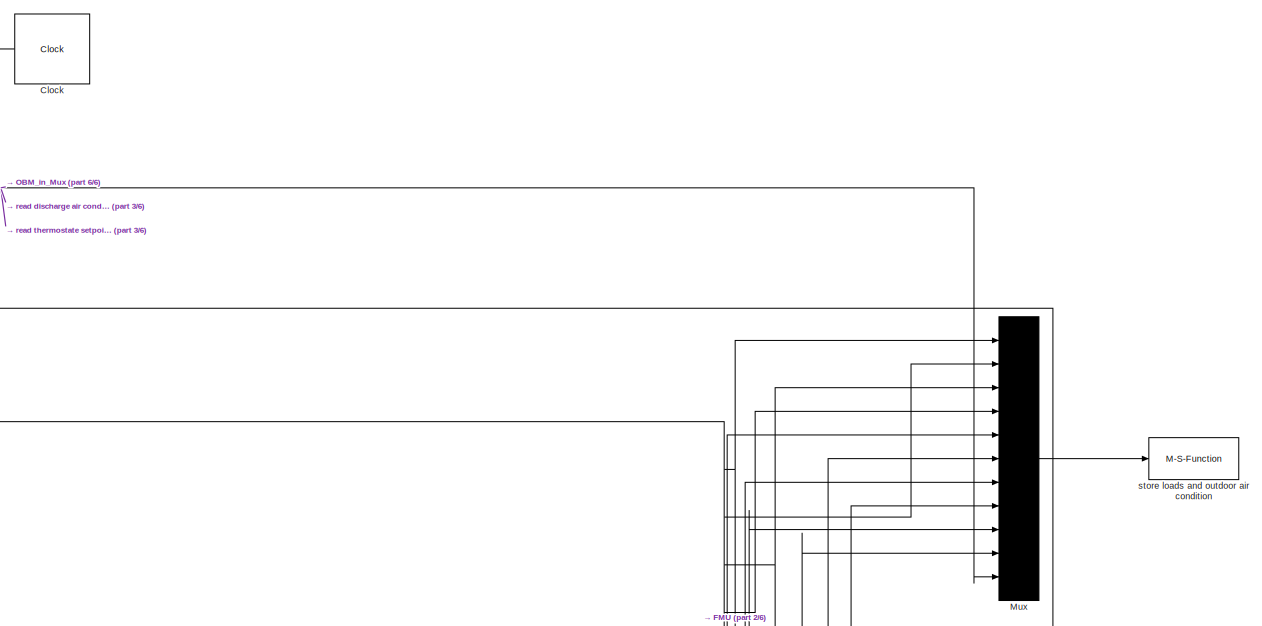
[diagram: root canvas - part 1/6, top right region]
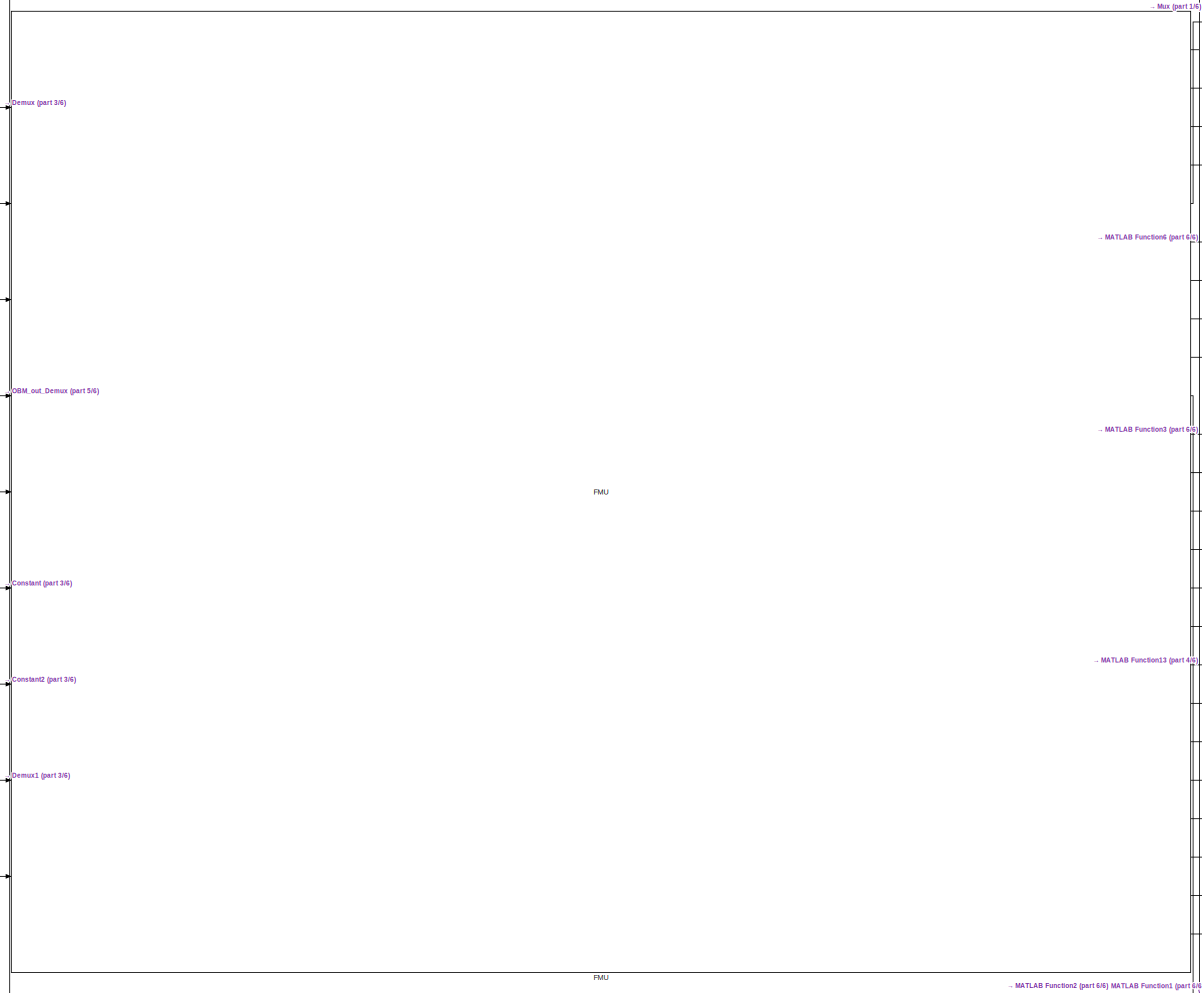
[diagram: root canvas - part 2/6, central region]
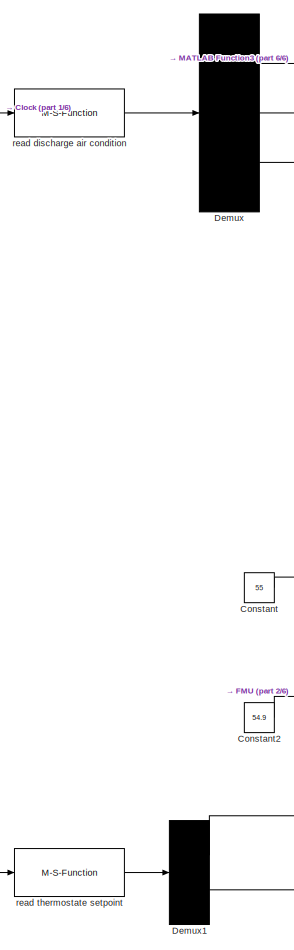
[diagram: root canvas - part 3/6, middle left region]
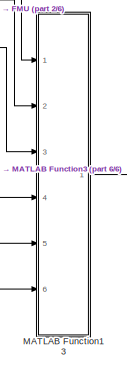
[diagram: root canvas - part 4/6, middle right region]
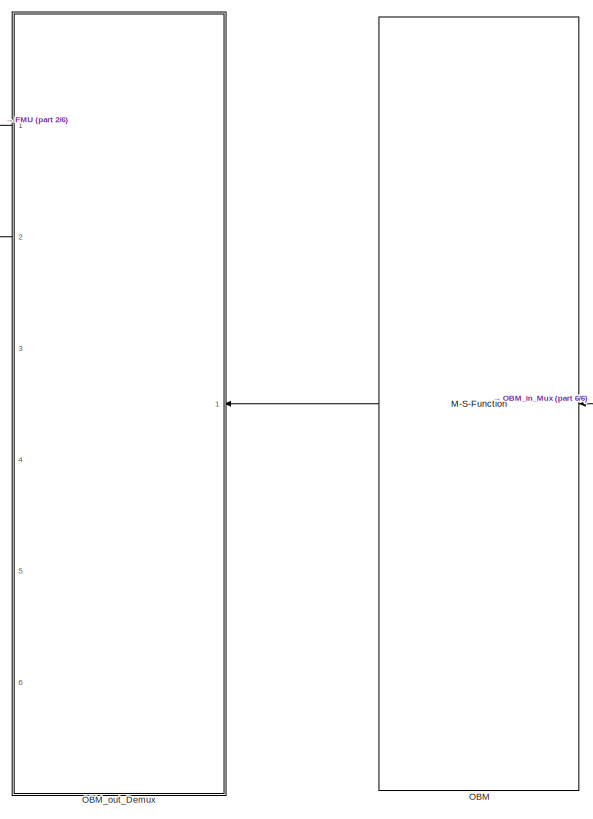
[diagram: root canvas - part 5/6, bottom center region]
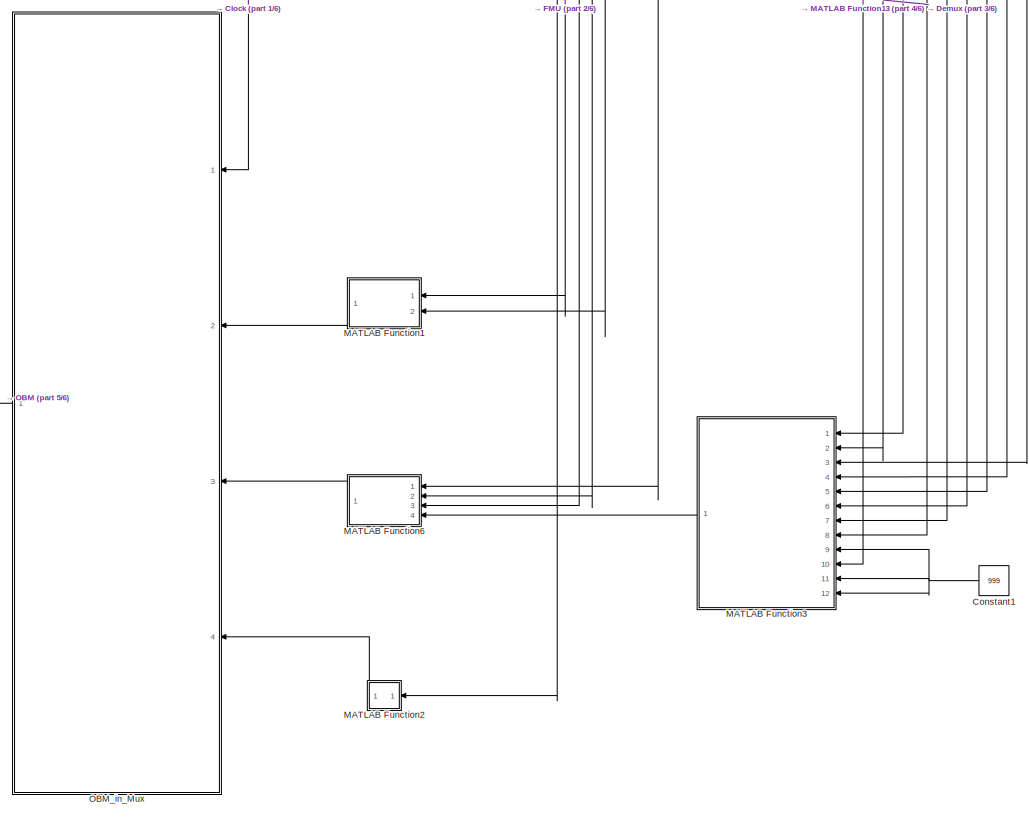
[diagram: root canvas - part 6/6, bottom right region]
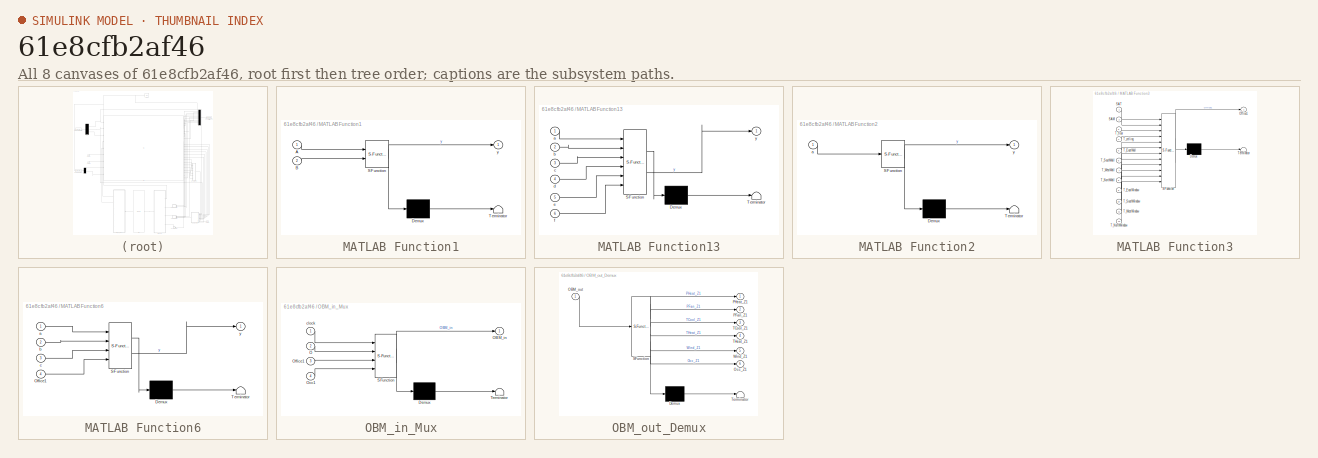
[diagram: thumbnail index - all 8 canvases of the model, root first then tree order]
MODEL slx_61e8cfb2af46
KIND model
CONFIG AbsTol = auto
CONFIG EnableMultiTasking = off
CONFIG FixedStep = 60
CONFIG MaxStep = auto
CONFIG MinStep = auto
CONFIG RelTol = 1e-3
CONFIG SampleTimeConstraint = Unconstrained
CONFIG Solver = FixedStepAuto
CONFIG SolverName = FixedStepAuto
CONFIG StartTime = 20390400
CONFIG StopTime = 20563200
BLOCK [Clock] Clock
  DisplayTime = on
BLOCK [Constant] Constant
  Value = 55
BLOCK [Constant] Constant1
  Value = 999
BLOCK [Constant] Constant2
  Value = 54.9
BLOCK [Demux] Demux
  Outputs = 3
  Ports = [1, 3]
BLOCK [Demux] Demux1
  Outputs = 2
  Ports = [1, 2]
BLOCK [FMU] FMU
  FMUMode = CoSimulation
  FMUName = ASHRAE901_OfficeSmall_STD2019_Tucson_2019Year.fmu
  MaskDisplay = disp('ASHRAE901_OfficeSmall_STD2019_Tucson_2019Year.idf');\nport_label('output',1,'T_out');\nport_label('output',2,'DewpointT_out');\nport_label('output',3,'RH_out');\nport_label('output',4,'Perimeter_ZN_1_SenLoads');\nport_label('output',5,'Perimeter_ZN_1_LatLoads');\nport_label('output',6,'Perimeter_ZN_1_Temp');\nport_label('output',7,'Perimeter_ZN_1_RadTemp');\nport_label('output',8,'Perimeter_ZN_1_Dew...<+1294ch>
  MaskType = ASHRAE901_OfficeSmall_STD2019_Tucson_2019Year.idf [Co-Simulation, v2.0]
  Ports = [9, 24]
BLOCK [SubSystem] MATLAB Function1
  ErrorFcn = Stateflow.Translate.translate
  PermitHierarchicalResolution = ExplicitOnly
  Ports = [2, 1]
  RequestExecContextInheritance = off
  SFBlockType = MATLAB Function
  TreatAsAtomicUnit = on
BLOCK [Demux] MATLAB Function1/ Demux 
  Outputs = 1
  Ports = [1, 1]
BLOCK [S-Function] MATLAB Function1/ SFunction 
  EnableBusSupport = on
  FunctionName = sf_sfun
  PortCounts = [2 2]
  Ports = [2, 2]
  SFcnIsStateOwnerBlock = off
  SFunctionDeploymentMode = off
  Tag = Stateflow S-Function 1
BLOCK [Terminator] MATLAB Function1/ Terminator 
BLOCK [Inport] MATLAB Function1/A
BLOCK [Inport] MATLAB Function1/B
  Port = 2
BLOCK [Outport] MATLAB Function1/y
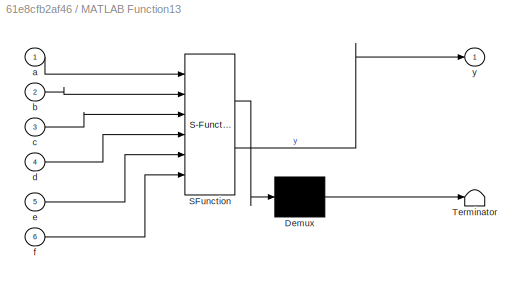
BLOCK [SubSystem] MATLAB Function13
  ErrorFcn = Stateflow.Translate.translate
  PermitHierarchicalResolution = ExplicitOnly
  Ports = [6, 1]
  RequestExecContextInheritance = off
  SFBlockType = MATLAB Function
  TreatAsAtomicUnit = on
BLOCK [Demux] MATLAB Function13/ Demux 
  Outputs = 1
  Ports = [1, 1]
BLOCK [S-Function] MATLAB Function13/ SFunction 
  EnableBusSupport = on
  FunctionName = sf_sfun
  PortCounts = [6 2]
  Ports = [6, 2]
  SFcnIsStateOwnerBlock = off
  SFunctionDeploymentMode = off
  Tag = Stateflow S-Function 14
BLOCK [Terminator] MATLAB Function13/ Terminator 
BLOCK [Inport] MATLAB Function13/a
BLOCK [Inport] MATLAB Function13/b
  Port = 2
BLOCK [Inport] MATLAB Function13/c
  Port = 3
BLOCK [Inport] MATLAB Function13/d
  Port = 4
BLOCK [Inport] MATLAB Function13/e
  Port = 5
BLOCK [Inport] MATLAB Function13/f
  Port = 6
BLOCK [Outport] MATLAB Function13/y
BLOCK [SubSystem] MATLAB Function2
  ErrorFcn = Stateflow.Translate.translate
  PermitHierarchicalResolution = ExplicitOnly
  Ports = [1, 1]
  RequestExecContextInheritance = off
  SFBlockType = MATLAB Function
  TreatAsAtomicUnit = on
BLOCK [Demux] MATLAB Function2/ Demux 
  Outputs = 1
  Ports = [1, 1]
BLOCK [S-Function] MATLAB Function2/ SFunction 
  EnableBusSupport = on
  FunctionName = sf_sfun
  PortCounts = [1 2]
  Ports = [1, 2]
  SFcnIsStateOwnerBlock = off
  SFunctionDeploymentMode = off
  Tag = Stateflow S-Function 3
BLOCK [Terminator] MATLAB Function2/ Terminator 
BLOCK [Inport] MATLAB Function2/a
BLOCK [Outport] MATLAB Function2/y
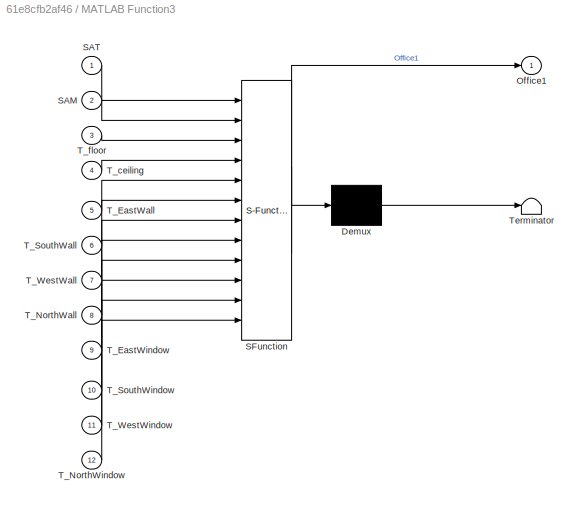
BLOCK [SubSystem] MATLAB Function3
  ErrorFcn = Stateflow.Translate.translate
  PermitHierarchicalResolution = ExplicitOnly
  Ports = [12, 1]
  RequestExecContextInheritance = off
  SFBlockType = MATLAB Function
  TreatAsAtomicUnit = on
BLOCK [Demux] MATLAB Function3/ Demux 
  Outputs = 1
  Ports = [1, 1]
BLOCK [S-Function] MATLAB Function3/ SFunction 
  EnableBusSupport = on
  FunctionName = sf_sfun
  PortCounts = [12 2]
  Ports = [12, 2]
  SFcnIsStateOwnerBlock = off
  SFunctionDeploymentMode = off
  Tag = Stateflow S-Function 4
BLOCK [Terminator] MATLAB Function3/ Terminator 
BLOCK [Outport] MATLAB Function3/Office1
BLOCK [Inport] MATLAB Function3/SAM
  Port = 2
BLOCK [Inport] MATLAB Function3/SAT
BLOCK [Inport] MATLAB Function3/T_EastWall
  Port = 5
BLOCK [Inport] MATLAB Function3/T_EastWindow
  Port = 9
BLOCK [Inport] MATLAB Function3/T_NorthWall
  Port = 8
BLOCK [Inport] MATLAB Function3/T_NorthWindow
  Port = 12
BLOCK [Inport] MATLAB Function3/T_SouthWall
  Port = 6
BLOCK [Inport] MATLAB Function3/T_SouthWindow
  Port = 10
BLOCK [Inport] MATLAB Function3/T_WestWall
  Port = 7
BLOCK [Inport] MATLAB Function3/T_WestWindow
  Port = 11
BLOCK [Inport] MATLAB Function3/T_ceiling
  Port = 4
BLOCK [Inport] MATLAB Function3/T_floor
  Port = 3
BLOCK [SubSystem] MATLAB Function6
  ErrorFcn = Stateflow.Translate.translate
  PermitHierarchicalResolution = ExplicitOnly
  Ports = [4, 1]
  RequestExecContextInheritance = off
  SFBlockType = MATLAB Function
  TreatAsAtomicUnit = on
BLOCK [Demux] MATLAB Function6/ Demux 
  Outputs = 1
  Ports = [1, 1]
BLOCK [S-Function] MATLAB Function6/ SFunction 
  EnableBusSupport = on
  FunctionName = sf_sfun
  PortCounts = [4 2]
  Ports = [4, 2]
  SFcnIsStateOwnerBlock = off
  SFunctionDeploymentMode = off
  Tag = Stateflow S-Function 7
BLOCK [Terminator] MATLAB Function6/ Terminator 
BLOCK [Inport] MATLAB Function6/Office1
  Port = 4
BLOCK [Inport] MATLAB Function6/a
BLOCK [Inport] MATLAB Function6/b
  Port = 2
BLOCK [Inport] MATLAB Function6/c
  Port = 3
BLOCK [Outport] MATLAB Function6/y
BLOCK [Mux] Mux
  DisplayOption = bar
  Inputs = 11
  Ports = [11, 1]
BLOCK [M-S-Function] OBM
  FunctionName = OBMmain
  Ports = [1, 1]
BLOCK [SubSystem] OBM_in_Mux
  ErrorFcn = Stateflow.Translate.translate
  PermitHierarchicalResolution = ExplicitOnly
  Ports = [4, 1]
  RequestExecContextInheritance = off
  SFBlockType = MATLAB Function
  TreatAsAtomicUnit = on
BLOCK [Demux] OBM_in_Mux/ Demux 
  Outputs = 1
  Ports = [1, 1]
BLOCK [S-Function] OBM_in_Mux/ SFunction 
  EnableBusSupport = on
  FunctionName = sf_sfun
  PortCounts = [4 2]
  Ports = [4, 2]
  SFcnIsStateOwnerBlock = off
  SFunctionDeploymentMode = off
  Tag = Stateflow S-Function 2
BLOCK [Terminator] OBM_in_Mux/ Terminator 
BLOCK [Inport] OBM_in_Mux/O
  Port = 2
BLOCK [Outport] OBM_in_Mux/OBM_in
BLOCK [Inport] OBM_in_Mux/Occ1
  Port = 4
BLOCK [Inport] OBM_in_Mux/Office1
  Port = 3
BLOCK [Inport] OBM_in_Mux/clock
BLOCK [SubSystem] OBM_out_Demux
  ErrorFcn = Stateflow.Translate.translate
  PermitHierarchicalResolution = ExplicitOnly
  Ports = [1, 6]
  RequestExecContextInheritance = off
  SFBlockType = MATLAB Function
  TreatAsAtomicUnit = on
BLOCK [Demux] OBM_out_Demux/ Demux 
  Outputs = 1
  Ports = [1, 1]
BLOCK [S-Function] OBM_out_Demux/ SFunction 
  EnableBusSupport = on
  FunctionName = sf_sfun
  PortCounts = [1 7]
  Ports = [1, 7]
  SFcnIsStateOwnerBlock = off
  SFunctionDeploymentMode = off
  Tag = Stateflow S-Function 15
BLOCK [Terminator] OBM_out_Demux/ Terminator 
BLOCK [Inport] OBM_out_Demux/OBM_out
BLOCK [Outport] OBM_out_Demux/Occ_Z1
  Port = 6
BLOCK [Outport] OBM_out_Demux/PFan_Z1
  Port = 2
BLOCK [Outport] OBM_out_Demux/PHeat_Z1
BLOCK [Outport] OBM_out_Demux/TCool_Z1
  Port = 3
BLOCK [Outport] OBM_out_Demux/THeat_Z1
  Port = 4
BLOCK [Outport] OBM_out_Demux/Wind_Z1
  Port = 5
BLOCK [M-S-Function] read discharge air condition
  FunctionName = DBread_DisAirCond
  Ports = [1, 1]
BLOCK [M-S-Function] read thermostate setpoint
  FunctionName = DBread_ThermSptCtrlSig
  Ports = [1, 1]
BLOCK [M-S-Function] store loads and outdoor air condition
  FunctionName = DBwrite_ZoneInfo
  Ports = [1, 1]
NET Clock:1 -> Mux:11, OBM_in_Mux:1, read discharge air condition:1, read thermostate setpoint:1
NET Constant1:1 -> MATLAB Function3:11, MATLAB Function3:12, MATLAB Function3:9
LINE Constant2:1 -> FMU:7
LINE Constant:1 -> FMU:6
LINE Demux1:1 -> FMU:8
LINE Demux1:2 -> FMU:9
NET Demux:1 -> FMU:1, MATLAB Function3:2
NET Demux:2 -> FMU:2, MATLAB Function3:1
LINE Demux:3 -> FMU:3
NET FMU:1 -> MATLAB Function1:1, Mux:1
LINE FMU:10 -> MATLAB Function2:1
LINE FMU:11 -> MATLAB Function3:3
LINE FMU:12 -> MATLAB Function3:4
LINE FMU:13 -> MATLAB Function3:5
LINE FMU:14 -> MATLAB Function3:6
LINE FMU:15 -> MATLAB Function3:7
LINE FMU:16 -> MATLAB Function3:8
LINE FMU:17 -> MATLAB Function13:1
LINE FMU:18 -> MATLAB Function13:2
LINE FMU:19 -> MATLAB Function13:3
LINE FMU:2 -> Mux:2
LINE FMU:20 -> MATLAB Function13:4
LINE FMU:21 -> MATLAB Function13:5
LINE FMU:22 -> MATLAB Function13:6
NET FMU:23 -> MATLAB Function6:3, Mux:9
LINE FMU:24 -> Mux:10
NET FMU:3 -> MATLAB Function1:2, Mux:3
LINE FMU:4 -> Mux:4
LINE FMU:5 -> Mux:5
NET FMU:6 -> MATLAB Function6:1, Mux:6
LINE FMU:7 -> MATLAB Function6:2
LINE FMU:8 -> Mux:7
LINE FMU:9 -> Mux:8
LINE MATLAB Function13:1 -> MATLAB Function3:10
LINE MATLAB Function1:1 -> OBM_in_Mux:2
LINE MATLAB Function2:1 -> OBM_in_Mux:4
LINE MATLAB Function3:1 -> MATLAB Function6:4
LINE MATLAB Function6:1 -> OBM_in_Mux:3
LINE Mux:1 -> store loads and outdoor air condition:1
LINE OBM:1 -> OBM_out_Demux:1
LINE OBM_in_Mux:1 -> OBM:1
LINE OBM_out_Demux:1 -> FMU:4
LINE OBM_out_Demux:2 -> FMU:5
LINE read discharge air condition:1 -> Demux:1
LINE read thermostate setpoint:1 -> Demux1:1
note: NET lines group one-source signal fan-out (src -> all destinations, sorted); 1:1 wires keep LINE
CHART MATLAB Function1 states=1 transitions=1
  STATE_LABEL 'eML_blk_kernel()'
  STATE_LABEL 'SCRIPT:\nfunction y = fcn(A,B)\n\ny = [A B];\n'
CHART OBM_in_Mux states=1 transitions=1
  STATE_LABEL 'eML_blk_kernel()'
  STATE_LABEL "SCRIPT:\nfunction OBM_in = fcn(clock,O,Office1,Occ1)\n% Assemble OBM inputs\nOBM_in=[clock,O,Office1,Occ1]';\n"
CHART MATLAB Function2 states=1 transitions=1
  STATE_LABEL 'eML_blk_kernel()'
  STATE_LABEL 'SCRIPT:\nfunction y = fcn(a)\nif a<0.6\n    a=0;\nend\na=round(a);\ny = [a];\n'
CHART MATLAB Function3 states=1 transitions=1
  STATE_LABEL 'eML_blk_kernel()'
  STATE_LABEL 'SCRIPT:\nfunction Office1 = fcn(SAT,SAM,T_floor,T_ceiling,T_EastWall,T_SouthWall,T_WestWall,T_NorthWall,...\n    T_EastWindow,T_SouthWindow,T_WestWindow,T_NorthWindow)\nOffice1=[SAT,SAM,T_floor,T_ceiling,T_EastWall,T_SouthWall,T_WestWall,T_NorthWall,...\n    T_EastWindow,T_SouthWindow,T_WestWindow,T_NorthWindow];\n'
CHART MATLAB Function6 states=1 transitions=1
  STATE_LABEL 'eML_blk_kernel()'
  STATE_LABEL 'SCRIPT:\nfunction y = fcn(a, b, c, Office1)\n\ny = [a b c Office1];\n'
CHART MATLAB Function13 states=1 transitions=1
  STATE_LABEL 'eML_blk_kernel()'
  STATE_LABEL 'SCRIPT:\nfunction y = fcn(a,b,c,d,e,f)\nu=(a+b+c+d+e+f)/6;\ny = u;\n'
CHART OBM_out_Demux states=1 transitions=1
  STATE_LABEL 'eML_blk_kernel()'
  STATE_LABEL 'SCRIPT:\nfunction [PHeat_Z1,PFan_Z1,TCool_Z1,THeat_Z1,Wind_Z1,Occ_Z1] = fcn(OBM_out)\n\nPHeat_Z1 = OBM_out(1);\nPFan_Z1 = OBM_out(2);\nTCool_Z1 = OBM_out(3);\nTHeat_Z1 = OBM_out(4);\nWind_Z1 = OBM_out(5);\nOcc_Z1 = OBM_out(6);\n\n\n'
CHART  states=0 transitions=0
CHART  states=0 transitions=0
CHART  states=0 transitions=0
CHART  states=0 transitions=0
CHART  states=0 transitions=0
CHART  states=0 transitions=0
CHART  states=0 transitions=0
